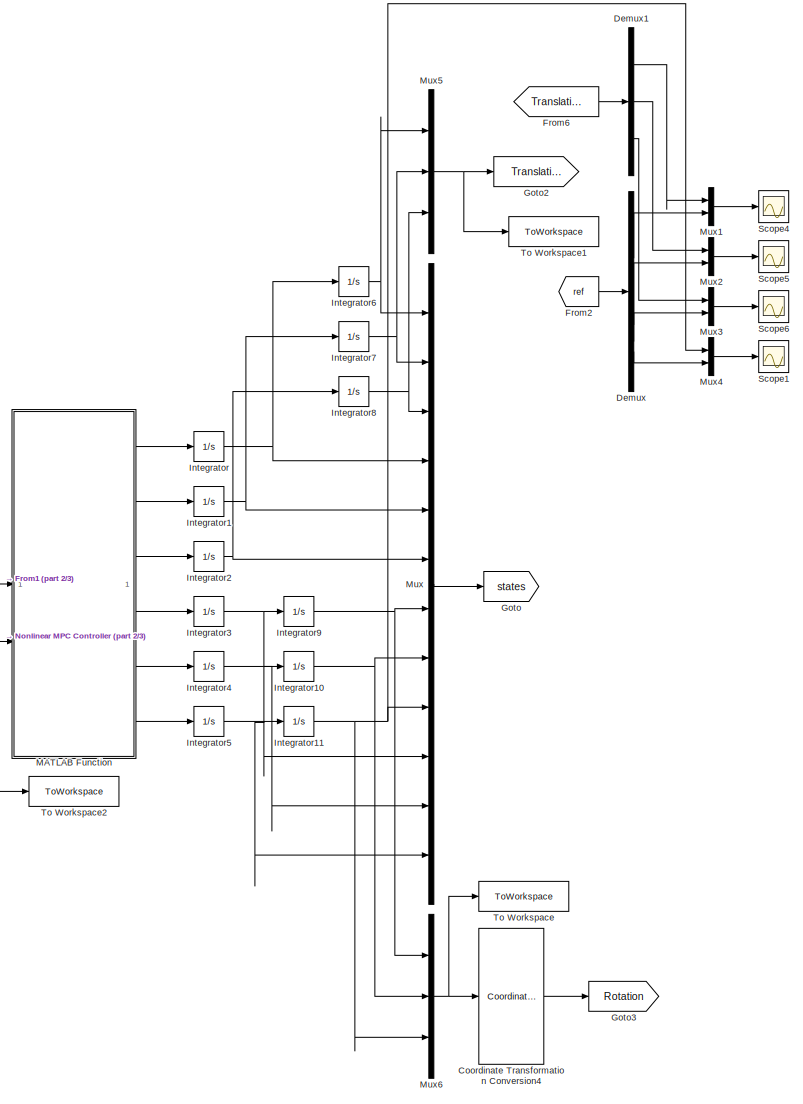
[diagram: root canvas - part 1/3, center side, full height]
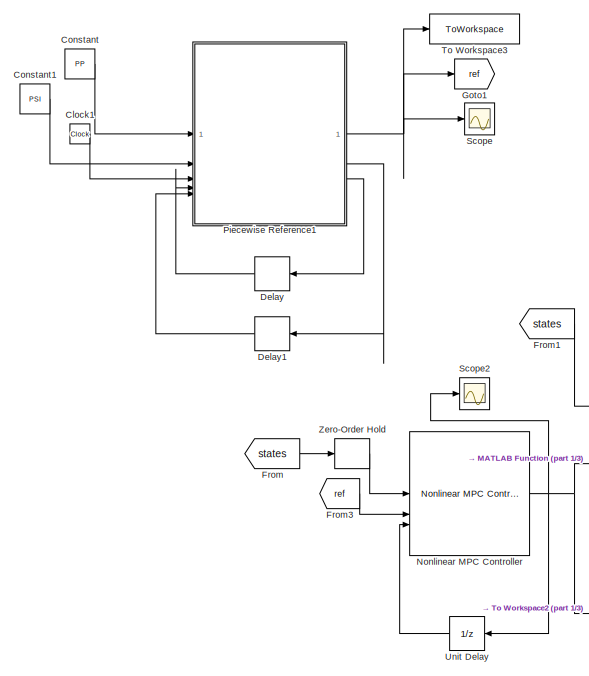
[diagram: root canvas - part 2/3, middle left region]
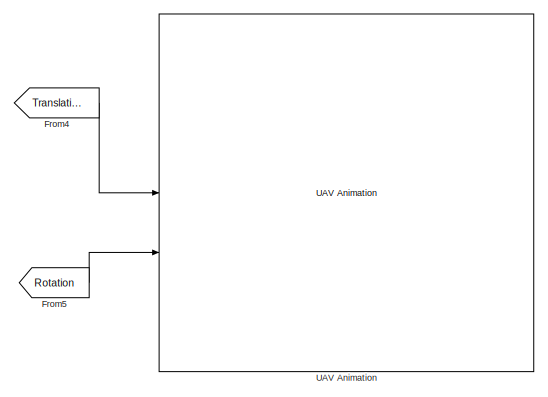
[diagram: root canvas - part 3/3, middle right region]
MODEL slx_1aaf76160564
KIND model
CONFIG AbsTol = auto
CONFIG EnableMultiTasking = off
CONFIG FixedStep = auto
CONFIG InitFcn = run('NLMPC_QUADCOPTER.m');
CONFIG MaxStep = auto
CONFIG MinStep = auto
CONFIG RelTol = 1e-3
CONFIG SampleTimeConstraint = Unconstrained
CONFIG SolverName = ode4
CONFIG StartTime = 0.0
CONFIG StopTime = T
BLOCK [Clock] Clock1
BLOCK [Constant] Constant
  Value = PP
BLOCK [Constant] Constant1
  Value = PSI
BLOCK [Reference] Coordinate Transformation Conversion4  REF=robotcorelib/Coordinate Transformation Conversion
  SourceBlock = robotcorelib/Coordinate Transformation Conversion
  SourceType = robotics.slcore.internal.block.CoordinateTransformationConversion
BLOCK [Delay] Delay
  DelayLength = 1
  InitialCondition = 1
  InputPortMap = u0
  NameLocation = top
  SampleTime = 0.001
BLOCK [Delay] Delay1
  DelayLength = 1
  InputPortMap = u0
  NameLocation = top
  SampleTime = 0.001
BLOCK [Demux] Demux
BLOCK [Demux] Demux1
  Outputs = 3
BLOCK [From] From
  GotoTag = states
BLOCK [From] From1
  GotoTag = states
BLOCK [From] From2
  GotoTag = ref
BLOCK [From] From3
  GotoTag = ref
BLOCK [From] From4
  GotoTag = Translation
BLOCK [From] From5
  GotoTag = Rotation
BLOCK [From] From6
  GotoTag = Translation
BLOCK [Goto] Goto
  GotoTag = states
BLOCK [Goto] Goto1
  GotoTag = ref
BLOCK [Goto] Goto2
  GotoTag = Translation
BLOCK [Goto] Goto3
  GotoTag = Rotation
BLOCK [Integrator] Integrator
BLOCK [Integrator] Integrator1
BLOCK [Integrator] Integrator10
BLOCK [Integrator] Integrator11
  InitialCondition = PSI(1,1)
BLOCK [Integrator] Integrator2
BLOCK [Integrator] Integrator3
BLOCK [Integrator] Integrator4
BLOCK [Integrator] Integrator5
BLOCK [Integrator] Integrator6
  InitialCondition = PP(1,1)
BLOCK [Integrator] Integrator7
  InitialCondition = PP(2,1)
BLOCK [Integrator] Integrator8
  InitialCondition = PP(3,1)
BLOCK [Integrator] Integrator9
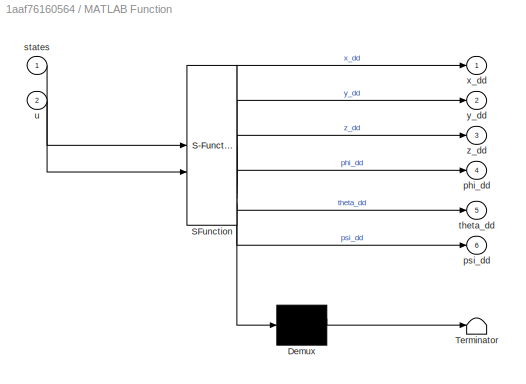
BLOCK [SubSystem] MATLAB Function
  ErrorFcn = Stateflow.Translate.translate
  LibrarySourceBlock = simulink/User-Defined\nFunctions/MATLAB Function
  PermitHierarchicalResolution = ExplicitOnly
  SFBlockType = MATLAB Function
  TreatAsAtomicUnit = on
BLOCK [Demux] MATLAB Function/ Demux 
  Outputs = 1
BLOCK [S-Function] MATLAB Function/ SFunction 
  EnableBusSupport = on
  FunctionName = sf_sfun
  PortCounts = [2 7]
  SFcnIsStateOwnerBlock = off
  SFunctionDeploymentMode = off
  Tag = Stateflow S-Function 2
BLOCK [Terminator] MATLAB Function/ Terminator 
BLOCK [Outport] MATLAB Function/phi_dd
  Port = 4
BLOCK [Outport] MATLAB Function/psi_dd
  Port = 6
BLOCK [Inport] MATLAB Function/states
BLOCK [Outport] MATLAB Function/theta_dd
  Port = 5
BLOCK [Inport] MATLAB Function/u
  Port = 2
BLOCK [Outport] MATLAB Function/x_dd
BLOCK [Outport] MATLAB Function/y_dd
  Port = 2
BLOCK [Outport] MATLAB Function/z_dd
  Port = 3
BLOCK [Mux] Mux
  DisplayOption = bar
  Inputs = 12
BLOCK [Mux] Mux1
  DisplayOption = bar
  Inputs = 2
BLOCK [Mux] Mux2
  DisplayOption = bar
  Inputs = 2
BLOCK [Mux] Mux3
  DisplayOption = bar
  Inputs = 2
BLOCK [Mux] Mux4
  DisplayOption = bar
  Inputs = 2
BLOCK [Mux] Mux5
  DisplayOption = bar
  Inputs = 3
BLOCK [Mux] Mux6
  DisplayOption = bar
  Inputs = 3
BLOCK [Reference] Nonlinear MPC Controller  REF=mpclib/Nonlinear MPC Controller  (lib defined in mdl_ae329e0e0455)
  SourceBlock = mpclib/Nonlinear MPC Controller
  SourceType = NonlinearMPC
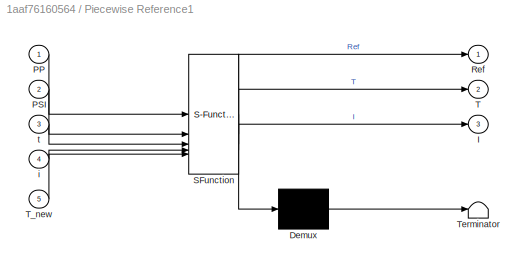
BLOCK [SubSystem] Piecewise Reference1
  ErrorFcn = Stateflow.Translate.translate
  LibrarySourceBlock = simulink/User-Defined\nFunctions/MATLAB Function
  PermitHierarchicalResolution = ExplicitOnly
  SFBlockType = MATLAB Function
  TreatAsAtomicUnit = on
BLOCK [Demux] Piecewise Reference1/ Demux 
  Outputs = 1
BLOCK [S-Function] Piecewise Reference1/ SFunction 
  EnableBusSupport = on
  FunctionName = sf_sfun
  PortCounts = [5 4]
  SFcnIsStateOwnerBlock = off
  SFunctionDeploymentMode = off
  Tag = Stateflow S-Function 3
BLOCK [Terminator] Piecewise Reference1/ Terminator 
BLOCK [Outport] Piecewise Reference1/I
  Port = 3
BLOCK [Inport] Piecewise Reference1/PP
BLOCK [Inport] Piecewise Reference1/PSI
  Port = 2
BLOCK [Outport] Piecewise Reference1/Ref
BLOCK [Outport] Piecewise Reference1/T
  Port = 2
BLOCK [Inport] Piecewise Reference1/T_new
  Port = 5
BLOCK [Inport] Piecewise Reference1/i
  Port = 4
BLOCK [Inport] Piecewise Reference1/t
  Port = 3
BLOCK [Scope] Scope
  Floating = off
  NumInputPorts = 1
  ScopeSpecificationString = Simulink.scopes.TimeScopeBlockCfg('CurrentConfiguration', extmgr.ConfigurationSet(extmgr.Configuration('Core','General UI',true),extmgr.Configuration('Core','Source UI',true),extmgr.Configuration('Sources','WiredSimulink',true),extmgr.Configuration('Visuals','Time Domain',true,'SerializedDisplays',{struct('MinYLimReal','-1.25','MaxYLimReal','1.25','YLabelReal','','MinYLimMag','0.00000','MaxYLimMag...<+1353ch>
BLOCK [Scope] Scope1
  Floating = off
  NumInputPorts = 1
  ScopeSpecificationString = Simulink.scopes.TimeScopeBlockCfg('CurrentConfiguration', extmgr.ConfigurationSet(extmgr.Configuration('Core','General UI',true),extmgr.Configuration('Core','Source UI',true),extmgr.Configuration('Sources','WiredSimulink',true,'DataLoggingVariableName','ScopeData1'),extmgr.Configuration('Visuals','Time Domain',true,'SerializedDisplays',{struct('MinYLimReal','-5.73146','MaxYLimReal','20.12384','YLa...<+1458ch>
BLOCK [Scope] Scope2
  Floating = off
  NumInputPorts = 1
  ScopeSpecificationString = Simulink.scopes.TimeScopeBlockCfg('CurrentConfiguration', extmgr.ConfigurationSet(extmgr.Configuration('Core','General UI',true),extmgr.Configuration('Core','Source UI',true),extmgr.Configuration('Sources','WiredSimulink',true,'DataLoggingVariableName','ScopeData2'),extmgr.Configuration('Visuals','Time Domain',true,'SerializedDisplays',{struct('MinYLimReal','-0.54168','MaxYLimReal','8.57264','YLab...<+1549ch>
BLOCK [Scope] Scope4
  Floating = off
  NumInputPorts = 1
  ScopeSpecificationString = Simulink.scopes.TimeScopeBlockCfg('CurrentConfiguration', extmgr.ConfigurationSet(extmgr.Configuration('Core','General UI',true),extmgr.Configuration('Core','Source UI',true),extmgr.Configuration('Sources','WiredSimulink',true,'DataLoggingVariableName','ScopeData4'),extmgr.Configuration('Visuals','Time Domain',true,'SerializedDisplays',{struct('MinYLimReal','-8.00623','MaxYLimReal','12.01549','YLa...<+1461ch>
BLOCK [Scope] Scope5
  Floating = off
  NumInputPorts = 1
  ScopeSpecificationString = Simulink.scopes.TimeScopeBlockCfg('CurrentConfiguration', extmgr.ConfigurationSet(extmgr.Configuration('Core','General UI',true),extmgr.Configuration('Core','Source UI',true),extmgr.Configuration('Sources','WiredSimulink',true,'DataLoggingVariableName','ScopeData5'),extmgr.Configuration('Visuals','Time Domain',true,'SerializedDisplays',{struct('MinYLimReal','-2.10871','MaxYLimReal','6.97837','YLab...<+1459ch>
BLOCK [Scope] Scope6
  Floating = off
  NumInputPorts = 1
  ScopeSpecificationString = Simulink.scopes.TimeScopeBlockCfg('CurrentConfiguration', extmgr.ConfigurationSet(extmgr.Configuration('Core','General UI',true),extmgr.Configuration('Core','Source UI',true),extmgr.Configuration('Sources','WiredSimulink',true,'DataLoggingVariableName','ScopeData6'),extmgr.Configuration('Visuals','Time Domain',true,'SerializedDisplays',{struct('MinYLimReal','0.50106','MaxYLimReal','2.58844','YLabe...<+1454ch>
BLOCK [ToWorkspace] To Workspace
  FixptAsFi = on
  MaxDataPoints = inf
  SampleTime = -1
  SaveFormat = Structure With Time
  VariableName = ATT
BLOCK [ToWorkspace] To Workspace1
  FixptAsFi = on
  MaxDataPoints = inf
  SampleTime = -1
  SaveFormat = Structure With Time
  VariableName = POS_Drone
BLOCK [ToWorkspace] To Workspace2
  FixptAsFi = on
  MaxDataPoints = inf
  SampleTime = -1
  SaveFormat = Structure With Time
  VariableName = CONTROL
BLOCK [ToWorkspace] To Workspace3
  FixptAsFi = on
  MaxDataPoints = inf
  SampleTime = -1
  SaveFormat = Structure With Time
  VariableName = REF
BLOCK [Reference] UAV Animation  REF=uavutilslib/UAV Animation
  SourceBlock = uavutilslib/UAV Animation
  SourceType = uav.sluav.internal.system.UAVAnimation
BLOCK [UnitDelay] Unit Delay
  HasFrameUpgradeWarning = on
  InitialCondition = m*g/4*ones(1,4)
  NameLocation = top
  SampleTime = -1
BLOCK [ZeroOrderHold] Zero-Order Hold
  SampleTime = 0.01
LINE Clock1:1 -> Piecewise Reference1:3
LINE Constant1:1 -> Piecewise Reference1:2
LINE Constant:1 -> Piecewise Reference1:1
LINE Coordinate Transformation Conversion4:1 -> Goto3:1
LINE Delay1:1 -> Piecewise Reference1:5
LINE Delay:1 -> Piecewise Reference1:4
LINE Demux1:1 -> Mux1:1
LINE Demux1:2 -> Mux2:1
LINE Demux1:3 -> Mux3:1
LINE Demux:1 -> Mux1:2
LINE Demux:2 -> Mux2:2
LINE Demux:3 -> Mux3:2
LINE Demux:4 -> Mux4:2
LINE From1:1 -> MATLAB Function:1
LINE From2:1 -> Demux:1
LINE From3:1 -> Nonlinear MPC Controller:2
LINE From4:1 -> UAV Animation:1
LINE From5:1 -> UAV Animation:2
LINE From6:1 -> Demux1:1
LINE From:1 -> Zero-Order Hold:1
NET Integrator10:1 -> Mux6:2, Mux:8
NET Integrator11:1 -> Mux4:1, Mux6:3, Mux:9
NET Integrator1:1 -> Integrator7:1, Mux:5
NET Integrator2:1 -> Integrator8:1, Mux:6
NET Integrator3:1 -> Integrator9:1, Mux:10
NET Integrator4:1 -> Integrator10:1, Mux:11
NET Integrator5:1 -> Integrator11:1, Mux:12
NET Integrator6:1 -> Mux5:1, Mux:1
NET Integrator7:1 -> Mux5:2, Mux:2
NET Integrator8:1 -> Mux5:3, Mux:3
NET Integrator9:1 -> Mux6:1, Mux:7
NET Integrator:1 -> Integrator6:1, Mux:4
LINE MATLAB Function:1 -> Integrator:1
LINE MATLAB Function:2 -> Integrator1:1
LINE MATLAB Function:3 -> Integrator2:1
LINE MATLAB Function:4 -> Integrator3:1
LINE MATLAB Function:5 -> Integrator4:1
LINE MATLAB Function:6 -> Integrator5:1
LINE Mux1:1 -> Scope4:1
LINE Mux2:1 -> Scope5:1
LINE Mux3:1 -> Scope6:1
LINE Mux4:1 -> Scope1:1
NET Mux5:1 -> Goto2:1, To Workspace1:1
NET Mux6:1 -> Coordinate Transformation Conversion4:1, To Workspace:1
LINE Mux:1 -> Goto:1
NET Nonlinear MPC Controller:1 -> MATLAB Function:2, Scope2:1, To Workspace2:1, Unit Delay:1
NET Piecewise Reference1:1 -> Goto1:1, Scope:1, To Workspace3:1
LINE Piecewise Reference1:2 -> Delay1:1
LINE Piecewise Reference1:3 -> Delay:1
LINE Unit Delay:1 -> Nonlinear MPC Controller:3
LINE Zero-Order Hold:1 -> Nonlinear MPC Controller:1
note: NET lines group one-source signal fan-out (src -> all destinations, sorted); 1:1 wires keep LINE
CHART MATLAB Function states=1 transitions=1
  STATE_LABEL 'eML_blk_kernel()'
  STATE_LABEL 'SCRIPT:\nfunction [x_dd,y_dd,z_dd,phi_dd,theta_dd,psi_dd] = QuadDyn(states,u)\n\n% STATES\nx=states(1);\ny=states(2);\nz=states(3);\nx_d=states(4);\ny_d=states(5);\nz_d=states(6);\nphi=states(7);\ntheta=states(8);\npsi=states(9);\nphi_d=states(10);\ntheta_d=states(11);\npsi_d=states(12);\n\n% INPUTS\nu1=u(1);\nu2=u(2);\nu3=u(3);\nu4=u(4);\n\n% PARAMS\nm=0.85;\nd=2*0.15;\nJ=diag([2.5 2.1 4.3])*10^-3;\nc=0.22;\ng=9.81;\n\n% DYNA...<+210ch>'
CHART Piecewise Reference1 states=1 transitions=1
  STATE_LABEL 'eML_blk_kernel()'
  STATE_LABEL 'SCRIPT:\nfunction [Ref,T,I] = fcn(PP,PSI,t,i,T_new)\nif t<=T_new+0.01\n\n    I = i;\n    T = T_new;\n     \nelse\n\n    I = i+1;\n    T = T_new + 0.01;\n    \nend\n\nRef = [PP(1,I) PP(2,I) PP(3,I) PSI(I)];\n\nend\n\n'
CHART  states=0 transitions=0
CHART  states=0 transitions=0
